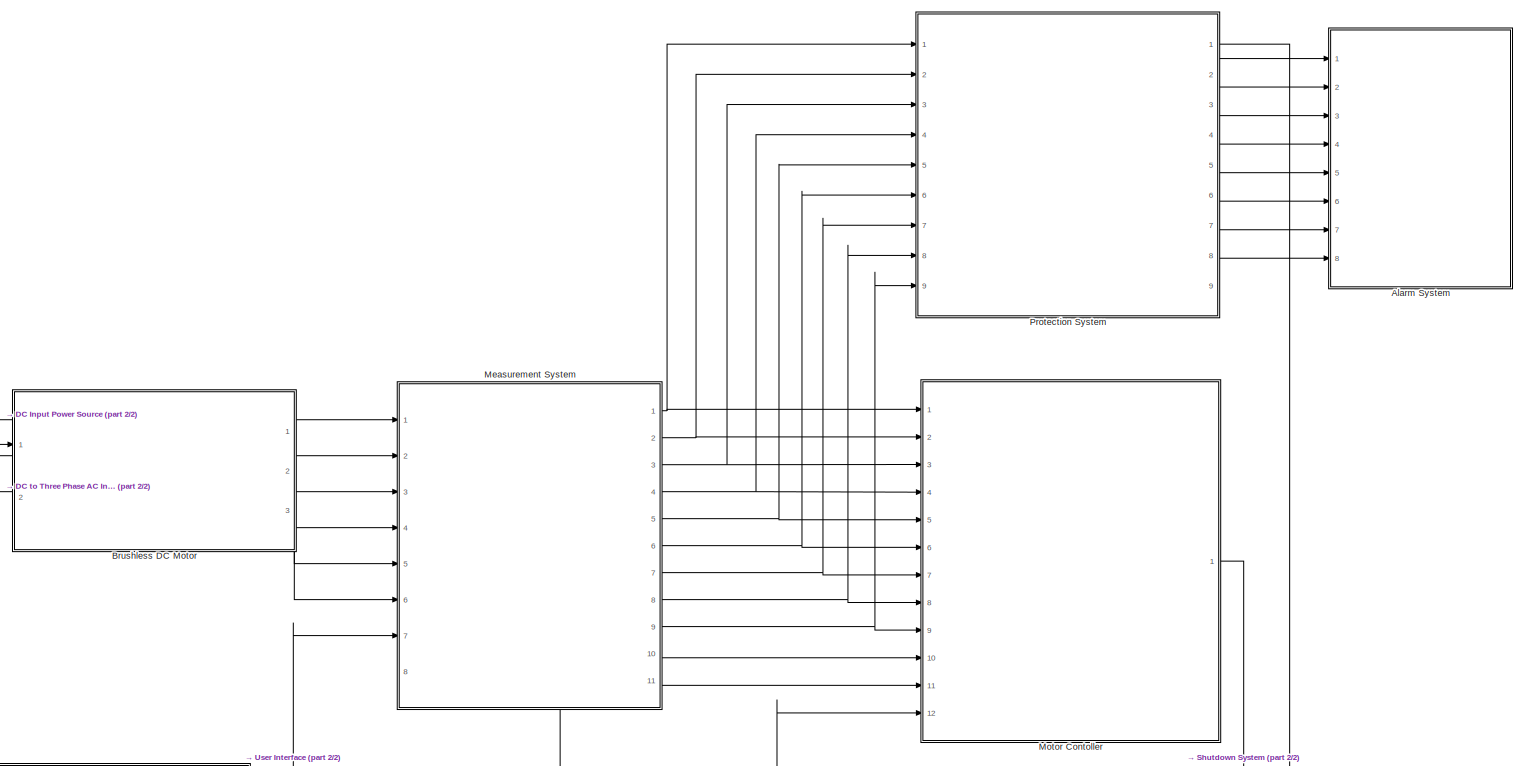
[diagram: root canvas - part 1/2, central region]
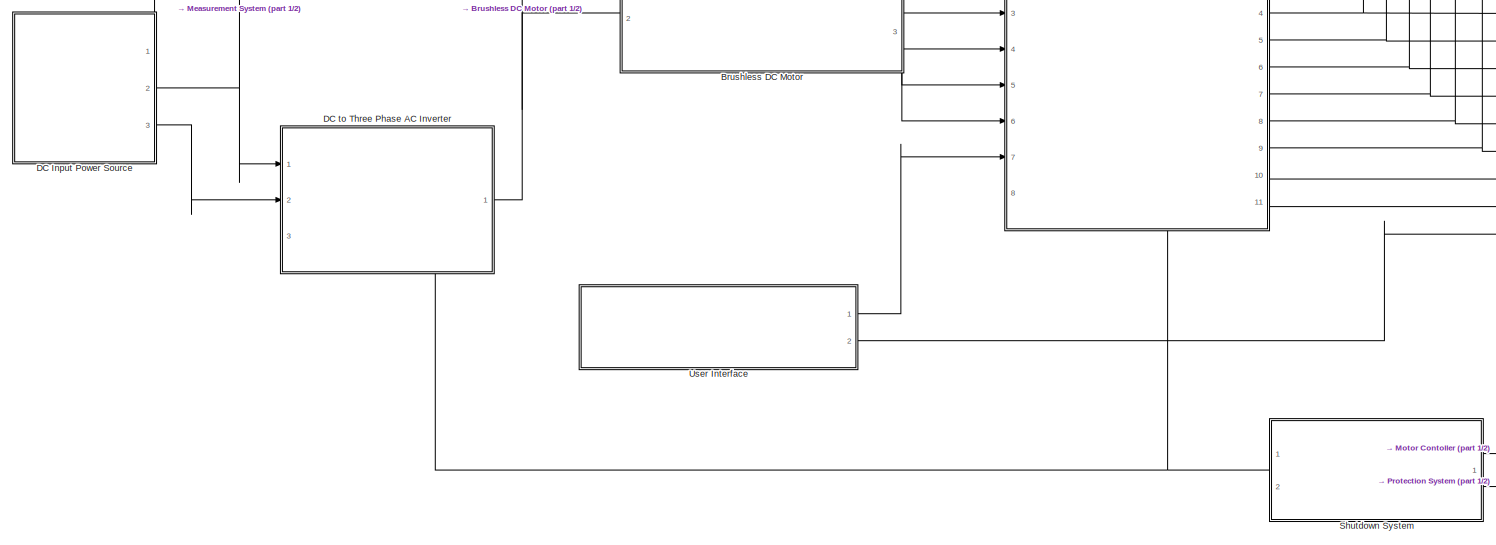
[diagram: root canvas - part 2/2, bottom center region]
MODEL slx_2ecd512068ea
KIND model
CONFIG AbsTol = auto
CONFIG EnableMultiTasking = off
CONFIG FixedStep = auto
CONFIG MaxStep = auto
CONFIG MinStep = auto
CONFIG RelTol = 1e-3
CONFIG SampleTimeConstraint = Unconstrained
CONFIG Solver = VariableStepAuto
CONFIG SolverName = VariableStepAuto
CONFIG StartTime = 0.0
CONFIG StopTime = 10.0
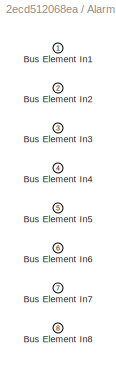
BLOCK [SubSystem] Alarm System
  PortSchema = {"entries":[{"content":{"headerSize":26,"margin":15,"minimumSpacing":25,"sides":[{"content":{"connectorIds":["In1","In2","In3","In4","In5","In6","In7","In8"]},"type":"ConnectorPlacement.EquallySpacedRectSide","uuid":"ace81693-b25f-4784-848a-70d4510dde11"},{"content":{"connectorIds":[],"side":"RIGHT"},"type":"ConnectorPlacement.EquallySpacedRectSide","uuid":"ee57309e-8484-4f62-a9df-3d3bfb9210c2"},{...<+326ch>
  Ports = [8]
  RequestExecContextInheritance = off
BLOCK [Inport] Alarm System/Bus Element In1
BLOCK [Inport] Alarm System/Bus Element In2
  Port = 2
BLOCK [Inport] Alarm System/Bus Element In3
  Port = 3
BLOCK [Inport] Alarm System/Bus Element In4
  Port = 4
BLOCK [Inport] Alarm System/Bus Element In5
  Port = 5
BLOCK [Inport] Alarm System/Bus Element In6
  Port = 6
BLOCK [Inport] Alarm System/Bus Element In7
  Port = 7
BLOCK [Inport] Alarm System/Bus Element In8
  Port = 8
BLOCK [ModelReference] Brushless DC Motor
  ModelNameDialog = BrushlessDCMotor
  ModelReferenceVersion = 1.5
  PortSchema = {"entries":[{"content":{"headerSize":38,"margin":15,"minimumSpacing":25,"sides":[{"content":{"connectorIds":["In1","In2"]},"type":"ConnectorPlacement.EquallySpacedRectSide","uuid":"ace81693-b25f-4784-848a-70d4510dde11"},{"content":{"connectorIds":["Out1","Out2","Out3"],"side":"RIGHT"},"type":"ConnectorPlacement.EquallySpacedRectSide","uuid":"ee57309e-8484-4f62-a9df-3d3bfb9210c2"},{"content":{"conn...<+310ch>
  Ports = [2, 3]
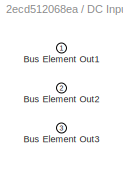
BLOCK [SubSystem] DC Input Power Source
  PortSchema = {"entries":[{"content":{"headerSize":26,"margin":15,"minimumSpacing":25,"sides":[{"content":{"connectorIds":[]},"type":"ConnectorPlacement.EquallySpacedRectSide","uuid":"ace81693-b25f-4784-848a-70d4510dde11"},{"content":{"connectorIds":["Out1","Out2","Out3"],"side":"RIGHT"},"type":"ConnectorPlacement.EquallySpacedRectSide","uuid":"ee57309e-8484-4f62-a9df-3d3bfb9210c2"},{"content":{"connectorIds":[...<+299ch>
  Ports = [0, 3]
  RequestExecContextInheritance = off
BLOCK [Outport] DC Input Power Source/Bus Element Out1
BLOCK [Outport] DC Input Power Source/Bus Element Out2
  Port = 2
BLOCK [Outport] DC Input Power Source/Bus Element Out3
  Port = 3
BLOCK [ModelReference] DC to Three Phase AC Inverter
  ModelNameDialog = DCtoThreePhaseACInverter
  ModelReferenceVersion = 1.5
  PortSchema = {"entries":[{"content":{"headerSize":38,"margin":15,"minimumSpacing":25,"sides":[{"content":{"connectorIds":["In1","In2","In3"]},"type":"ConnectorPlacement.EquallySpacedRectSide","uuid":"ace81693-b25f-4784-848a-70d4510dde11"},{"content":{"connectorIds":["Out1"],"side":"RIGHT"},"type":"ConnectorPlacement.EquallySpacedRectSide","uuid":"ee57309e-8484-4f62-a9df-3d3bfb9210c2"},{"content":{"connectorIds...<+302ch>
  Ports = [3, 1]
BLOCK [ModelReference] Measurement System
  ModelNameDialog = MeasurementSystem
  ModelReferenceVersion = 1.7
  PortSchema = {"entries":[{"content":{"headerSize":38,"margin":15,"minimumSpacing":25,"sides":[{"content":{"connectorIds":["In4","In5","In6","In2","In1","In3","In7","In8"]},"type":"ConnectorPlacement.EquallySpacedRectSide","uuid":"ace81693-b25f-4784-848a-70d4510dde11"},{"content":{"connectorIds":["Out1","Out2","Out3","Out4","Out5","Out6","Out7","Out8","Out9","Out10","Out11"],"side":"RIGHT"},"type":"ConnectorPla...<+548ch>
  Ports = [8, 11]
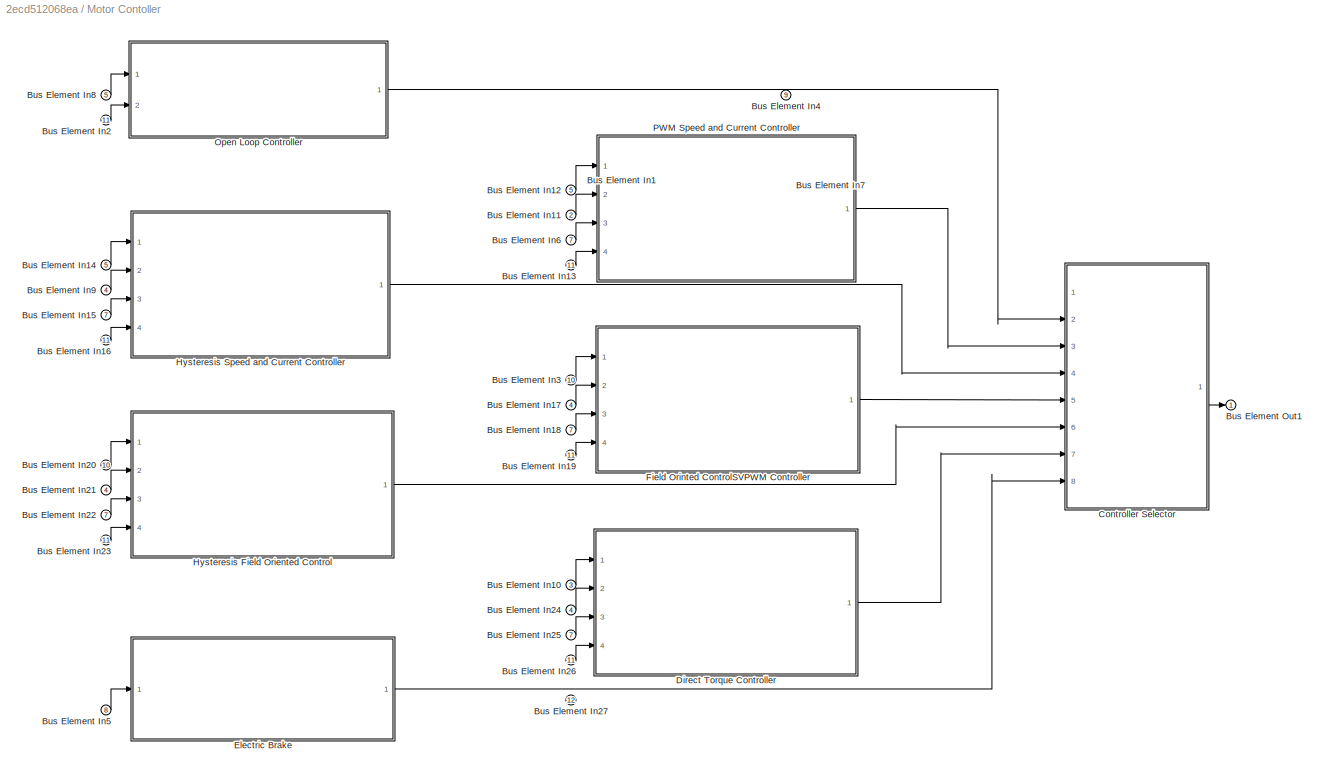
BLOCK [SubSystem] Motor Contoller
  PortSchema = {"entries":[{"content":{"headerSize":26,"margin":15,"minimumSpacing":25,"sides":[{"content":{"connectorIds":["In1","In2","In3","In4","In5","In6","In7","In8","In9","In10","In11","In12"]},"type":"ConnectorPlacement.EquallySpacedRectSide","uuid":"ace81693-b25f-4784-848a-70d4510dde11"},{"content":{"connectorIds":["Out1"],"side":"RIGHT"},"type":"ConnectorPlacement.EquallySpacedRectSide","uuid":"ee57309...<+503ch>
  Ports = [12, 1]
  RequestExecContextInheritance = off
BLOCK [ModelReference] Motor Contoller/ Field Orinted ControlSVPWM Controller
  ModelNameDialog = FieldOrintedControlSVPWMController
  ModelReferenceVersion = 1.3
  PortSchema = {"entries":[{"content":{"headerSize":38,"margin":15,"minimumSpacing":25,"sides":[{"content":{"connectorIds":["In1","In2","In3","In4"]},"type":"ConnectorPlacement.EquallySpacedRectSide","uuid":"fd46a9f6-eb8e-4c51-ab59-7fbc82101733"},{"content":{"connectorIds":["Out1"],"side":"RIGHT"},"type":"ConnectorPlacement.EquallySpacedRectSide","uuid":"11588de1-2509-448a-a048-62600568a090"},{"content":{"connec...<+308ch>  <repeated x5 — deduplicated; at blocks: Field Orinted ControlSVPWM Controller, Direct Torque Controller, Hysteresis Field Oriented Control, Hysteresis Speed and Current Controller, PWM Speed and Current Controller>
  Ports = [4, 1]
BLOCK [Inport] Motor Contoller/Bus Element In1
BLOCK [Inport] Motor Contoller/Bus Element In10
  Port = 3
BLOCK [Inport] Motor Contoller/Bus Element In11
  Port = 2
BLOCK [Inport] Motor Contoller/Bus Element In12
  Port = 5
BLOCK [Inport] Motor Contoller/Bus Element In13
  Port = 11
BLOCK [Inport] Motor Contoller/Bus Element In14
  Port = 5
BLOCK [Inport] Motor Contoller/Bus Element In15
  Port = 7
BLOCK [Inport] Motor Contoller/Bus Element In16
  Port = 11
BLOCK [Inport] Motor Contoller/Bus Element In17
  Port = 4
BLOCK [Inport] Motor Contoller/Bus Element In18
  Port = 7
BLOCK [Inport] Motor Contoller/Bus Element In19
  Port = 11
BLOCK [Inport] Motor Contoller/Bus Element In2
  Port = 11
BLOCK [Inport] Motor Contoller/Bus Element In20
  Port = 10
BLOCK [Inport] Motor Contoller/Bus Element In21
  Port = 4
BLOCK [Inport] Motor Contoller/Bus Element In22
  Port = 7
BLOCK [Inport] Motor Contoller/Bus Element In23
  Port = 11
BLOCK [Inport] Motor Contoller/Bus Element In24
  Port = 4
BLOCK [Inport] Motor Contoller/Bus Element In25
  Port = 7
BLOCK [Inport] Motor Contoller/Bus Element In26
  Port = 11
BLOCK [Inport] Motor Contoller/Bus Element In27
  Port = 12
BLOCK [Inport] Motor Contoller/Bus Element In3
  Port = 10
BLOCK [Inport] Motor Contoller/Bus Element In4
  Port = 9
BLOCK [Inport] Motor Contoller/Bus Element In5
  Port = 8
BLOCK [Inport] Motor Contoller/Bus Element In6
  Port = 7
BLOCK [Inport] Motor Contoller/Bus Element In7
  Port = 6
BLOCK [Inport] Motor Contoller/Bus Element In8
  Port = 5
BLOCK [Inport] Motor Contoller/Bus Element In9
  Port = 4
BLOCK [Outport] Motor Contoller/Bus Element Out1
BLOCK [ModelReference] Motor Contoller/Controller Selector
  ModelNameDialog = ControllerSelector
  ModelReferenceVersion = 1.4
  PortSchema = {"entries":[{"content":{"headerSize":38,"margin":15,"minimumSpacing":25,"sides":[{"content":{"connectorIds":["In1","In2","In3","In4","In5","In6","In7","In8"]},"type":"ConnectorPlacement.EquallySpacedRectSide","uuid":"fd46a9f6-eb8e-4c51-ab59-7fbc82101733"},{"content":{"connectorIds":["Out1"],"side":"RIGHT"},"type":"ConnectorPlacement.EquallySpacedRectSide","uuid":"11588de1-2509-448a-a048-62600568a0...<+332ch>
  Ports = [8, 1]
BLOCK [ModelReference] Motor Contoller/Direct Torque Controller
  ModelNameDialog = DirectTorqueController
  ModelReferenceVersion = 1.3
  Ports = [4, 1]
BLOCK [ModelReference] Motor Contoller/Electric Brake
  ModelNameDialog = ElectricBrake
  ModelReferenceVersion = 1.3
  PortSchema = {"entries":[{"content":{"headerSize":38,"margin":15,"minimumSpacing":25,"sides":[{"content":{"connectorIds":["In1"]},"type":"ConnectorPlacement.EquallySpacedRectSide","uuid":"fd46a9f6-eb8e-4c51-ab59-7fbc82101733"},{"content":{"connectorIds":["Out1"],"side":"RIGHT"},"type":"ConnectorPlacement.EquallySpacedRectSide","uuid":"11588de1-2509-448a-a048-62600568a090"},{"content":{"connectorIds":[],"side":...<+290ch>
  Ports = [1, 1]
BLOCK [ModelReference] Motor Contoller/Hysteresis Field Oriented Control
  ModelNameDialog = HysteresisFieldOrientedControl
  ModelReferenceVersion = 1.4
  Ports = [4, 1]
BLOCK [ModelReference] Motor Contoller/Hysteresis Speed and Current Controller
  ModelNameDialog = HysteresisSpeedandCurrentController
  ModelReferenceVersion = 1.4
  Ports = [4, 1]
BLOCK [ModelReference] Motor Contoller/Open Loop Controller
  ModelNameDialog = OpenLoopController
  ModelReferenceVersion = 1.3
  PortSchema = {"entries":[{"content":{"headerSize":38,"margin":15,"minimumSpacing":25,"sides":[{"content":{"connectorIds":["In1","In2"]},"type":"ConnectorPlacement.EquallySpacedRectSide","uuid":"fd46a9f6-eb8e-4c51-ab59-7fbc82101733"},{"content":{"connectorIds":["Out1"],"side":"RIGHT"},"type":"ConnectorPlacement.EquallySpacedRectSide","uuid":"11588de1-2509-448a-a048-62600568a090"},{"content":{"connectorIds":[],"...<+296ch>
  Ports = [2, 1]
BLOCK [ModelReference] Motor Contoller/PWM Speed and Current Controller
  ModelNameDialog = PWMSpeedandCurrentController
  ModelReferenceVersion = 1.4
  Ports = [4, 1]
BLOCK [ModelReference] Protection System
  ModelNameDialog = ProtectionSystem
  ModelReferenceVersion = 1.5
  PortSchema = {"entries":[{"content":{"headerSize":38,"margin":15,"minimumSpacing":25,"sides":[{"content":{"connectorIds":["In1","In2","In3","In4","In5","In6","In7","In8","In9"]},"type":"ConnectorPlacement.EquallySpacedRectSide","uuid":"ace81693-b25f-4784-848a-70d4510dde11"},{"content":{"connectorIds":["Out2","Out3","Out4","Out5","Out6","Out7","Out8","Out9","Out1"],"side":"RIGHT"},"type":"ConnectorPlacement.Equ...<+394ch>
  Ports = [9, 9]
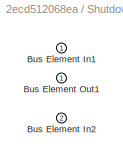
BLOCK [SubSystem] Shutdown System
  PortSchema = {"entries":[{"content":{"headerSize":26,"margin":15,"minimumSpacing":25,"sides":[{"content":{"connectorIds":["Out1"]},"type":"ConnectorPlacement.EquallySpacedRectSide","uuid":"ace81693-b25f-4784-848a-70d4510dde11"},{"content":{"connectorIds":["In1","In2"],"side":"RIGHT"},"type":"ConnectorPlacement.EquallySpacedRectSide","uuid":"ee57309e-8484-4f62-a9df-3d3bfb9210c2"},{"content":{"connectorIds":[],"...<+296ch>
  Ports = [2, 1]
  RequestExecContextInheritance = off
BLOCK [Inport] Shutdown System/Bus Element In1
BLOCK [Inport] Shutdown System/Bus Element In2
  Port = 2
BLOCK [Outport] Shutdown System/Bus Element Out1
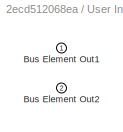
BLOCK [SubSystem] User Interface
  PortSchema = {"entries":[{"content":{"headerSize":26,"margin":15,"minimumSpacing":25,"sides":[{"content":{"connectorIds":[]},"type":"ConnectorPlacement.EquallySpacedRectSide","uuid":"ace81693-b25f-4784-848a-70d4510dde11"},{"content":{"connectorIds":["Out1","Out2"],"side":"RIGHT"},"type":"ConnectorPlacement.EquallySpacedRectSide","uuid":"ee57309e-8484-4f62-a9df-3d3bfb9210c2"},{"content":{"connectorIds":[],"side...<+292ch>
  Ports = [0, 2]
  RequestExecContextInheritance = off
BLOCK [Outport] User Interface/Bus Element Out1
BLOCK [Outport] User Interface/Bus Element Out2
  Port = 2
LINE Brushless DC Motor:1 -> Measurement System:4
LINE Brushless DC Motor:2 -> Measurement System:5
LINE Brushless DC Motor:3 -> Measurement System:6
LINE DC Input Power Source:1 -> Measurement System:2
NET DC Input Power Source:2 -> DC to Three Phase AC Inverter:1, Measurement System:1
LINE DC Input Power Source:3 -> DC to Three Phase AC Inverter:2
NET DC to Three Phase AC Inverter:1 -> Brushless DC Motor:1, Measurement System:3
NET Measurement System:1 -> Motor Contoller:1, Protection System:1
LINE Measurement System:10 -> Motor Contoller:10
LINE Measurement System:11 -> Motor Contoller:11
NET Measurement System:2 -> Motor Contoller:2, Protection System:2
NET Measurement System:3 -> Motor Contoller:3, Protection System:3
NET Measurement System:4 -> Motor Contoller:4, Protection System:4
NET Measurement System:5 -> Motor Contoller:5, Protection System:5
NET Measurement System:6 -> Motor Contoller:6, Protection System:6
NET Measurement System:7 -> Motor Contoller:7, Protection System:7
NET Measurement System:8 -> Motor Contoller:8, Protection System:8
NET Measurement System:9 -> Motor Contoller:9, Protection System:9
LINE Motor Contoller/ Field Orinted ControlSVPWM Controller:1 -> Motor Contoller/Controller Selector:5
LINE Motor Contoller/Bus Element In10:1 -> Motor Contoller/Direct Torque Controller:1
LINE Motor Contoller/Bus Element In11:1 -> Motor Contoller/PWM Speed and Current Controller:2
LINE Motor Contoller/Bus Element In12:1 -> Motor Contoller/PWM Speed and Current Controller:1
LINE Motor Contoller/Bus Element In13:1 -> Motor Contoller/PWM Speed and Current Controller:4
LINE Motor Contoller/Bus Element In14:1 -> Motor Contoller/Hysteresis Speed and Current Controller:1
LINE Motor Contoller/Bus Element In15:1 -> Motor Contoller/Hysteresis Speed and Current Controller:3
LINE Motor Contoller/Bus Element In16:1 -> Motor Contoller/Hysteresis Speed and Current Controller:4
LINE Motor Contoller/Bus Element In17:1 -> Motor Contoller/ Field Orinted ControlSVPWM Controller:2
LINE Motor Contoller/Bus Element In18:1 -> Motor Contoller/ Field Orinted ControlSVPWM Controller:3
LINE Motor Contoller/Bus Element In19:1 -> Motor Contoller/ Field Orinted ControlSVPWM Controller:4
LINE Motor Contoller/Bus Element In20:1 -> Motor Contoller/Hysteresis Field Oriented Control:1
LINE Motor Contoller/Bus Element In21:1 -> Motor Contoller/Hysteresis Field Oriented Control:2
LINE Motor Contoller/Bus Element In22:1 -> Motor Contoller/Hysteresis Field Oriented Control:3
LINE Motor Contoller/Bus Element In23:1 -> Motor Contoller/Hysteresis Field Oriented Control:4
LINE Motor Contoller/Bus Element In24:1 -> Motor Contoller/Direct Torque Controller:2
LINE Motor Contoller/Bus Element In25:1 -> Motor Contoller/Direct Torque Controller:3
LINE Motor Contoller/Bus Element In26:1 -> Motor Contoller/Direct Torque Controller:4
LINE Motor Contoller/Bus Element In2:1 -> Motor Contoller/Open Loop Controller:2
LINE Motor Contoller/Bus Element In3:1 -> Motor Contoller/ Field Orinted ControlSVPWM Controller:1
LINE Motor Contoller/Bus Element In5:1 -> Motor Contoller/Electric Brake:1
LINE Motor Contoller/Bus Element In6:1 -> Motor Contoller/PWM Speed and Current Controller:3
LINE Motor Contoller/Bus Element In8:1 -> Motor Contoller/Open Loop Controller:1
LINE Motor Contoller/Bus Element In9:1 -> Motor Contoller/Hysteresis Speed and Current Controller:2
LINE Motor Contoller/Controller Selector:1 -> Motor Contoller/Bus Element Out1:1
LINE Motor Contoller/Direct Torque Controller:1 -> Motor Contoller/Controller Selector:7
LINE Motor Contoller/Electric Brake:1 -> Motor Contoller/Controller Selector:8
LINE Motor Contoller/Hysteresis Field Oriented Control:1 -> Motor Contoller/Controller Selector:6
LINE Motor Contoller/Hysteresis Speed and Current Controller:1 -> Motor Contoller/Controller Selector:4
LINE Motor Contoller/Open Loop Controller:1 -> Motor Contoller/Controller Selector:2
LINE Motor Contoller/PWM Speed and Current Controller:1 -> Motor Contoller/Controller Selector:3
LINE Motor Contoller:1 -> Shutdown System:1
LINE Protection System:1 -> Shutdown System:2
LINE Protection System:2 -> Alarm System:1
LINE Protection System:3 -> Alarm System:2
LINE Protection System:4 -> Alarm System:3
LINE Protection System:5 -> Alarm System:4
LINE Protection System:6 -> Alarm System:5
LINE Protection System:7 -> Alarm System:6
LINE Protection System:8 -> Alarm System:7
LINE Protection System:9 -> Alarm System:8
NET Shutdown System:1 -> DC to Three Phase AC Inverter:3, Measurement System:8
LINE User Interface:1 -> Measurement System:7
LINE User Interface:2 -> Motor Contoller:12
note: NET lines group one-source signal fan-out (src -> all destinations, sorted); 1:1 wires keep LINE
